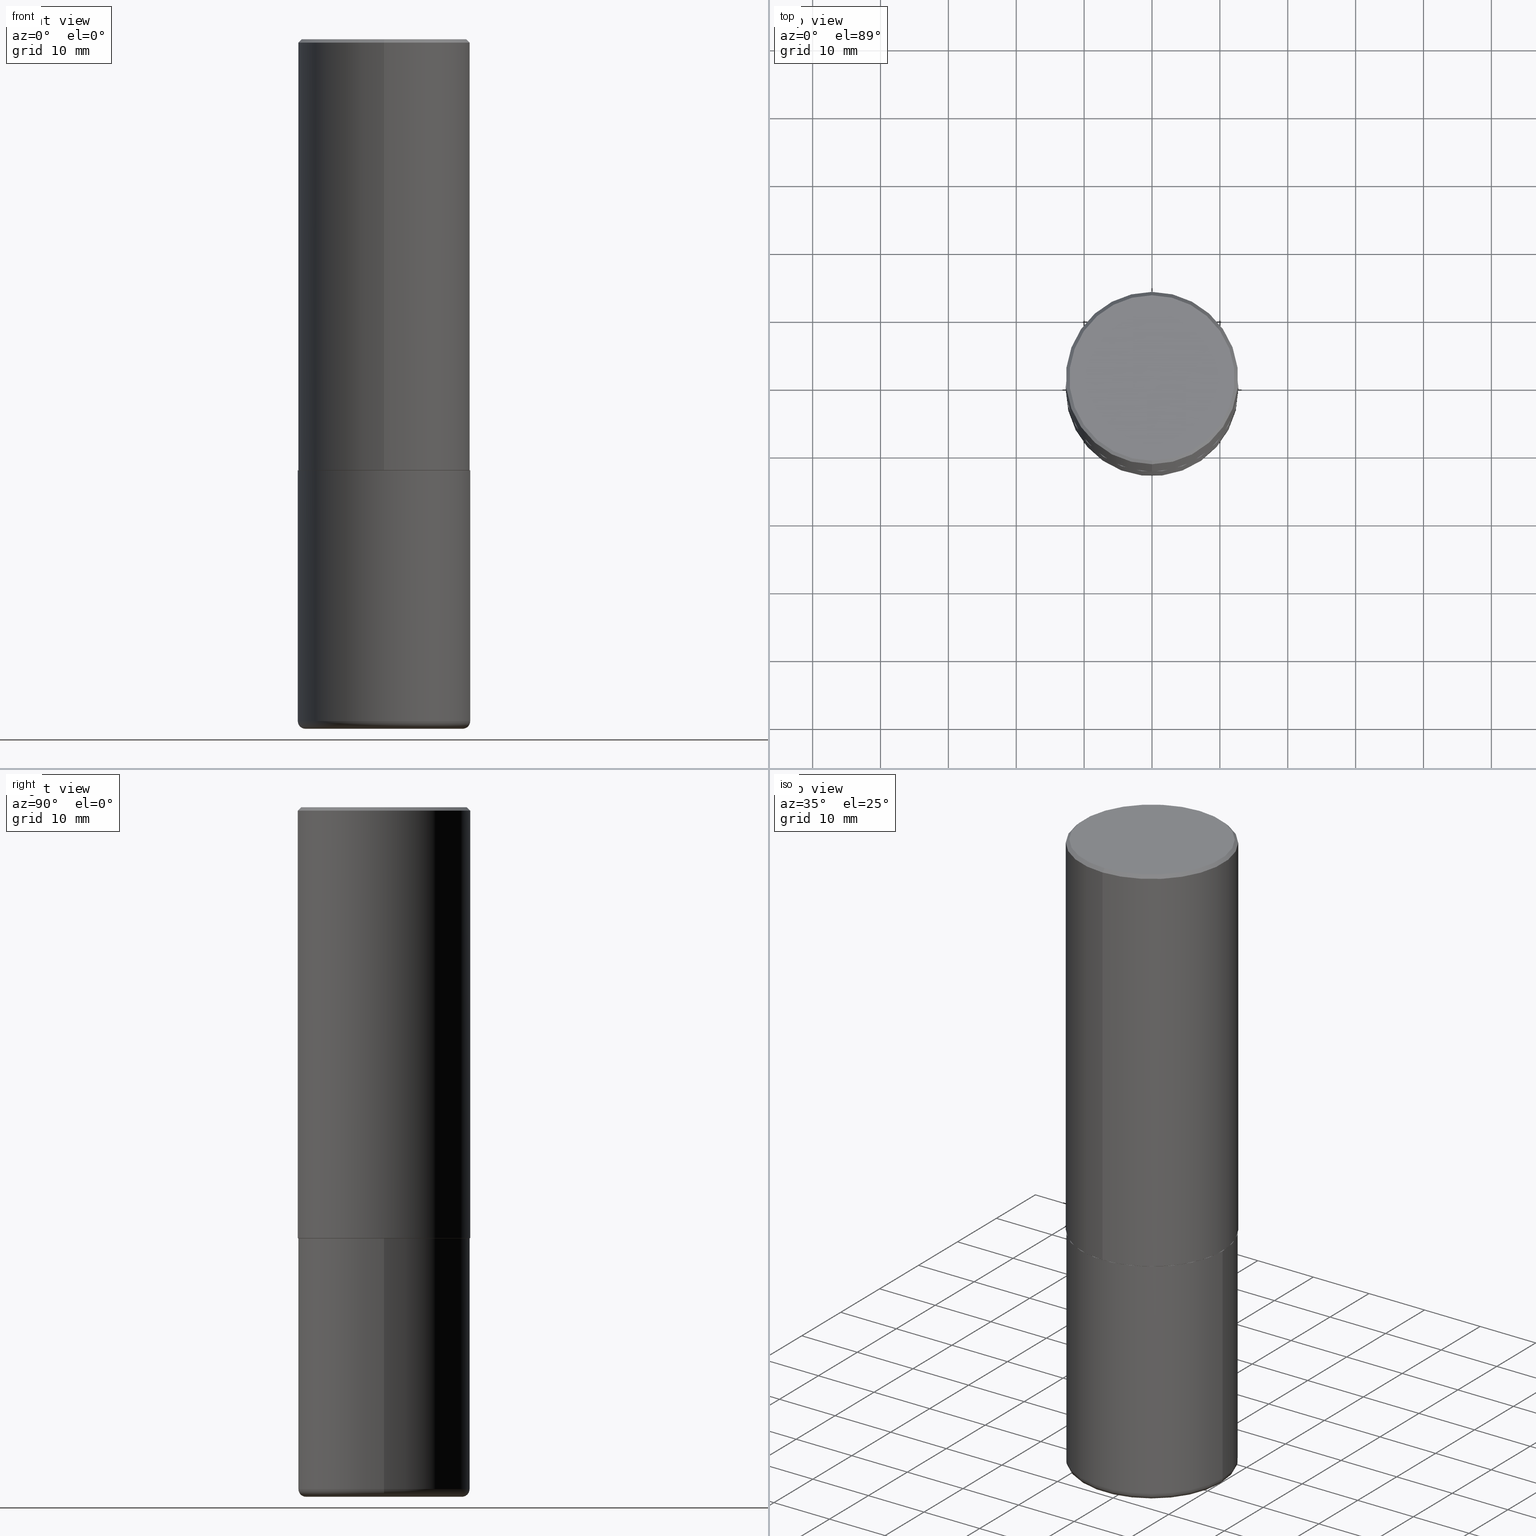
[diagram: canonical four-view strip — front | top / right | iso, engineering-drawing reading convention]
A machine part, canonical four-view strip (front | top / right | iso — engineering-drawing reading convention). The complete STEP part file that produces these views, byte-faithful:
ISO-10303-21;
HEADER;
FILE_DESCRIPTION (( 'STEP AP203' ),
    '1' );
FILE_NAME ('38307.STEP',
    '2024-03-02T21:56:03',
    ( '' ),
    ( '' ),
    'SwSTEP 2.0',
    'SolidWorks 2023',
    '' );
FILE_SCHEMA (( 'CONFIG_CONTROL_DESIGN' ));
ENDSEC;

DATA;
#1 = PRODUCT_RELATED_PRODUCT_CATEGORY ( 'detail', '', ( #263 ) ) ;
#2 = PERSON_AND_ORGANIZATION_ROLE ( 'creator' ) ;
#3 = AXIS2_PLACEMENT_3D ( 'NONE', #379, #186, #357 ) ;
#4 = EDGE_CURVE ( 'NONE', #269, #139, #52, .T. ) ;
#5 = PERSON_AND_ORGANIZATION ( #261, #8 ) ;
#6 = CARTESIAN_POINT ( 'NONE',  ( 0.000000000000000000, 0.000000000000000000, 0.000000000000000000 ) ) ;
#7 = AXIS2_PLACEMENT_3D ( 'NONE', #351, #356, #61 ) ;
#8 = ORGANIZATION ( 'UNSPECIFIED', 'UNSPECIFIED', '' ) ;
#9 = EDGE_CURVE ( 'NONE', #223, #231, #284, .T. ) ;
#10 = ORIENTED_EDGE ( 'NONE', *, *, #121, .F. ) ;
#11 = ORIENTED_EDGE ( 'NONE', *, *, #39, .F. ) ;
#12 = VERTEX_POINT ( 'NONE', #414 ) ;
#13 = LOCAL_TIME ( 16, 56, 3.000000000000000000, #326 ) ;
#14 = EDGE_CURVE ( 'NONE', #211, #399, #175, .T. ) ;
#15 = DIRECTION ( 'NONE',  ( -6.982962677686265922E-15, -1.000000000000000000, 3.284787166730577015E-15 ) ) ;
#16 = ORIENTED_EDGE ( 'NONE', *, *, #89, .F. ) ;
#17 = AXIS2_PLACEMENT_3D ( 'NONE', #418, #123, #389 ) ;
#18 = ADVANCED_FACE ( 'NONE', ( #242 ), #117, .T. ) ;
#19 = ORIENTED_EDGE ( 'NONE', *, *, #150, .F. ) ;
#20 = DIRECTION ( 'NONE',  ( 1.000000000000000000, -6.982962677686266711E-15, 4.876176775795935793E-29 ) ) ;
#21 = CC_DESIGN_PERSON_AND_ORGANIZATION_ASSIGNMENT ( #259, #323, ( #294 ) ) ;
#22 = CARTESIAN_POINT ( 'NONE',  ( 6.111162829265862436E-29, -8.732296644555945592E-15, -2.499999999999999556 ) ) ;
#23 = AXIS2_PLACEMENT_3D ( 'NONE', #84, #205, #80 ) ;
#24 = CARTESIAN_POINT ( 'NONE',  ( -3.491481338843073796E-15, -0.5000000000000089928, -2.498999999999998778 ) ) ;
#25 = DIRECTION ( 'NONE',  ( -6.982962677686265922E-15, -1.000000000000000000, 3.284787166730577015E-15 ) ) ;
#26 = APPLICATION_PROTOCOL_DEFINITION ( 'international standard', 'config_control_design', 1994, #391 ) ;
#27 = VERTEX_POINT ( 'NONE', #46 ) ;
#28 = CALENDAR_DATE ( 2024, 2, 3 ) ;
#29 = DATE_TIME_ROLE ( 'classification_date' ) ;
#30 = CIRCLE ( 'NONE', #58, 0.5000000000000002220 ) ;
#31 = DIRECTION ( 'NONE',  ( -2.445468806185136597E-29, 3.491481338843145583E-15, 1.000000000000000000 ) ) ;
#32 = CALENDAR_DATE ( 2024, 2, 3 ) ;
#33 = APPROVAL_ROLE ( '' ) ;
#34 = EDGE_CURVE ( 'NONE', #266, #66, #329, .T. ) ;
#35 = CIRCLE ( 'NONE', #3, 0.5000000000000002220 ) ;
#36 = ORIENTED_EDGE ( 'NONE', *, *, #262, .T. ) ;
#37 = CC_DESIGN_DATE_AND_TIME_ASSIGNMENT ( #157, #29, ( #126 ) ) ;
#38 = DIRECTION ( 'NONE',  ( -2.444465131706345255E-29, 3.492918657822378868E-15, 1.000000000000000000 ) ) ;
#39 = EDGE_CURVE ( 'NONE', #272, #231, #398, .T. ) ;
#40 = CARTESIAN_POINT ( 'NONE',  ( 0.000000000000000000, 0.000000000000000000, 0.000000000000000000 ) ) ;
#41 = DIRECTION ( 'NONE',  ( -6.982962677686266711E-15, -1.000000000000000000, 3.491481338843145583E-15 ) ) ;
#42 = AXIS2_PLACEMENT_3D ( 'NONE', #312, #49, #278 ) ;
#43 = CYLINDRICAL_SURFACE ( 'NONE', #415, 0.5000000000000000000 ) ;
#44 = ORIENTED_EDGE ( 'NONE', *, *, #124, .T. ) ;
#45 = DIRECTION ( 'NONE',  ( -2.444465131706345255E-29, 3.492918657822378473E-15, 1.000000000000000000 ) ) ;
#46 = CARTESIAN_POINT ( 'NONE',  ( -3.361644018908049661E-15, -0.4799999999999998157, 1.801077731077684661E-15 ) ) ;
#47 = FACE_OUTER_BOUND ( 'NONE', #179, .T. ) ;
#48 = ORIENTED_EDGE ( 'NONE', *, *, #81, .T. ) ;
#49 = DIRECTION ( 'NONE',  ( 2.444465131706344694E-29, -3.492918657822378868E-15, -1.000000000000000000 ) ) ;
#50 = ADVANCED_FACE ( 'NONE', ( #229 ), #394, .T. ) ;
#51 = ORIENTED_EDGE ( 'NONE', *, *, #4, .T. ) ;
#52 = CIRCLE ( 'NONE', #313, 0.4989999999999999991 ) ;
#53 = LINE ( 'NONE', #187, #386 ) ;
#54 = CIRCLE ( 'NONE', #320, 0.4989999999999999991 ) ;
#55 = ORIENTED_EDGE ( 'NONE', *, *, #348, .T. ) ;
#56 = CARTESIAN_POINT ( 'NONE',  ( 3.549160965121762351E-15, 0.4989999999999912283, -2.500000000000001332 ) ) ;
#57 = FACE_OUTER_BOUND ( 'NONE', #311, .T. ) ;
#58 = AXIS2_PLACEMENT_3D ( 'NONE', #333, #45, #255 ) ;
#59 = FACE_OUTER_BOUND ( 'NONE', #413, .T. ) ;
#60 = APPROVAL ( #125, 'UNSPECIFIED' ) ;
#61 = DIRECTION ( 'NONE',  ( -6.982962677686265922E-15, -1.000000000000000000, 3.492918657822378473E-15 ) ) ;
#62 = ADVANCED_FACE ( 'NONE', ( #198 ), #210, .F. ) ;
#63 = APPROVAL_STATUS ( 'not_yet_approved' ) ;
#64 = CC_DESIGN_SECURITY_CLASSIFICATION ( #126, ( #143 ) ) ;
#65 = DATE_AND_TIME ( #355, #292 ) ;
#66 = VERTEX_POINT ( 'NONE', #283 ) ;
#67 = DIRECTION ( 'NONE',  ( 1.000000000000000000, -6.982962677686246200E-15, 0.000000000000000000 ) ) ;
#68 = DATE_AND_TIME ( #257, #327 ) ;
#69 = SHAPE_DEFINITION_REPRESENTATION ( #324, #397 ) ;
#70 = CARTESIAN_POINT ( 'NONE',  ( -0.5000000000000000000, -7.716042342315751891E-15, -2.500000000000000000 ) ) ;
#71 = ADVANCED_FACE ( 'NONE', ( #337 ), #237, .T. ) ;
#72 = DIRECTION ( 'NONE',  ( -2.445468806185136597E-29, 3.491481338843145583E-15, 1.000000000000000000 ) ) ;
#73 = APPROVAL ( #63, 'UNSPECIFIED' ) ;
#74 = VECTOR ( 'NONE', #408, 39.37007874015748143 ) ;
#75 = EDGE_LOOP ( 'NONE', ( #376, #367 ) ) ;
#76 = FACE_OUTER_BOUND ( 'NONE', #241, .T. ) ;
#77 = DIRECTION ( 'NONE',  ( -6.982962677686265922E-15, -1.000000000000000000, 3.492918657822378473E-15 ) ) ;
#78 = PLANE ( 'NONE',  #308 ) ;
#79 = ORIENTED_EDGE ( 'NONE', *, *, #393, .T. ) ;
#80 = DIRECTION ( 'NONE',  ( 6.982962677686265922E-15, 1.000000000000000000, -3.491643216902136408E-15 ) ) ;
#81 = EDGE_CURVE ( 'NONE', #139, #339, #92, .T. ) ;
#82 = FACE_OUTER_BOUND ( 'NONE', #208, .T. ) ;
#83 = ORIENTED_EDGE ( 'NONE', *, *, #184, .T. ) ;
#84 = CARTESIAN_POINT ( 'NONE',  ( 4.888930263412717169E-31, -6.985837315644793974E-17, -0.02000000000000010797 ) ) ;
#85 = ORIENTED_EDGE ( 'NONE', *, *, #334, .T. ) ;
#86 = AXIS2_PLACEMENT_3D ( 'NONE', #310, #281, #20 ) ;
#87 = DIRECTION ( 'NONE',  ( -2.445468806185136597E-29, 3.491481338843145583E-15, 1.000000000000000000 ) ) ;
#88 = DIRECTION ( 'NONE',  ( 5.024295867790635654E-15, 0.7071067811869121700, 0.7071067811861828645 ) ) ;
#89 = EDGE_CURVE ( 'NONE', #211, #266, #246, .T. ) ;
#90 = VERTEX_POINT ( 'NONE', #344 ) ;
#91 =( LENGTH_UNIT ( ) NAMED_UNIT ( * ) SI_UNIT ( $, .METRE. ) );
#92 = LINE ( 'NONE', #346, #385 ) ;
#93 = CC_DESIGN_PERSON_AND_ORGANIZATION_ASSIGNMENT ( #290, #384, ( #143 ) ) ;
#94 = DIRECTION ( 'NONE',  ( 4.937700262164543309E-15, 0.7071067811865444641, -0.7071067811865505703 ) ) ;
#95 = PERSON_AND_ORGANIZATION ( #261, #8 ) ;
#96 = CIRCLE ( 'NONE', #215, 0.04499999999999985956 ) ;
#97 = DIRECTION ( 'NONE',  ( -2.445468806185136597E-29, 3.491481338843145583E-15, 1.000000000000000000 ) ) ;
#98 = DIRECTION ( 'NONE',  ( -6.982962677686265922E-15, -1.000000000000000000, 3.491643216902136408E-15 ) ) ;
#99 = ADVANCED_FACE ( 'NONE', ( #59 ), #341, .T. ) ;
#100 = DIRECTION ( 'NONE',  ( -6.982962677686265922E-15, -1.000000000000000000, 3.492918657822378473E-15 ) ) ;
#101 = COORDINATED_UNIVERSAL_TIME_OFFSET ( 5, 0, .BEHIND. ) ;
#102 = CONICAL_SURFACE ( 'NONE', #225, 0.4989999999999999991, 0.7853981633979605359 ) ;
#103 = CARTESIAN_POINT ( 'NONE',  ( -3.491481338843133750E-15, -0.5000000000000001110, 1.746459328911189631E-15 ) ) ;
#104 = CC_DESIGN_APPROVAL ( #73, ( #143 ) ) ;
#105 = UNCERTAINTY_MEASURE_WITH_UNIT (LENGTH_MEASURE( 1.000000000000000082E-05 ), #201, 'distance_accuracy_value', 'NONE');
#106 = ORIENTED_EDGE ( 'NONE', *, *, #235, .F. ) ;
#107 = CARTESIAN_POINT ( 'NONE',  ( 0.4550000000000000155, -1.698605671347189079E-14, -3.954999999999999627 ) ) ;
#108 = CALENDAR_DATE ( 2024, 2, 3 ) ;
#109 = EDGE_CURVE ( 'NONE', #269, #272, #148, .T. ) ;
#110 = CARTESIAN_POINT ( 'NONE',  ( 9.671829128462214433E-29, -1.380880869512464070E-14, -3.954999999999999627 ) ) ;
#111 = DIRECTION ( 'NONE',  ( 6.982962677686265922E-15, 1.000000000000000000, -3.491643216902136408E-15 ) ) ;
#112 = ADVANCED_FACE ( 'NONE', ( #217 ), #115, .T. ) ;
#113 = DIMENSIONAL_EXPONENTS ( 1.000000000000000000, 0.000000000000000000, 0.000000000000000000, 0.000000000000000000, 0.000000000000000000, 0.000000000000000000, 0.000000000000000000 ) ;
#114 = APPROVAL_PERSON_ORGANIZATION ( #5, #60, #129 ) ;
#115 = CYLINDRICAL_SURFACE ( 'NONE', #306, 0.5000000000000001110 ) ;
#116 =( NAMED_UNIT ( * ) PLANE_ANGLE_UNIT ( ) SI_UNIT ( $, .RADIAN. ) );
#117 = CYLINDRICAL_SURFACE ( 'NONE', #214, 0.5000000000000001110 ) ;
#118 = EDGE_LOOP ( 'NONE', ( #10, #55, #403, #245 ) ) ;
#119 = ORIENTED_EDGE ( 'NONE', *, *, #348, .F. ) ;
#120 = AXIS2_PLACEMENT_3D ( 'NONE', #183, #31, #388 ) ;
#121 = EDGE_CURVE ( 'NONE', #27, #12, #358, .T. ) ;
#122 = DIRECTION ( 'NONE',  ( -2.444465131706345255E-29, 3.492918657822378473E-15, 1.000000000000000000 ) ) ;
#123 = DIRECTION ( 'NONE',  ( 7.105427357601001859E-15, 1.000000000000000000, -3.491481338843145583E-15 ) ) ;
#124 = EDGE_CURVE ( 'NONE', #236, #90, #177, .T. ) ;
#125 = APPROVAL_STATUS ( 'not_yet_approved' ) ;
#126 = SECURITY_CLASSIFICATION ( '', '', #350 ) ;
#127 = CARTESIAN_POINT ( 'NONE',  ( 0.5000000000000000000, -1.730029003396777405E-14, -3.954999999999999627 ) ) ;
#128 = ORIENTED_EDGE ( 'NONE', *, *, #109, .F. ) ;
#129 = APPROVAL_ROLE ( '' ) ;
#130 = VECTOR ( 'NONE', #199, 39.37007874015748143 ) ;
#131 =( GEOMETRIC_REPRESENTATION_CONTEXT ( 3 ) GLOBAL_UNCERTAINTY_ASSIGNED_CONTEXT ( ( #105 ) ) GLOBAL_UNIT_ASSIGNED_CONTEXT ( ( #201, #116, #268 ) ) REPRESENTATION_CONTEXT ( 'NONE', 'WORKASPACE' ) );
#132 = CIRCLE ( 'NONE', #352, 0.5000000000000000000 ) ;
#133 = EDGE_CURVE ( 'NONE', #90, #211, #395, .T. ) ;
#134 = ORIENTED_EDGE ( 'NONE', *, *, #14, .T. ) ;
#135 = CIRCLE ( 'NONE', #285, 0.4550000000000000155 ) ;
#136 = APPROVAL_ROLE ( '' ) ;
#137 = CARTESIAN_POINT ( 'NONE',  ( 1.313596622797037674E-28, -9.162676135743107690E-15, -4.000000000000000000 ) ) ;
#138 = ORIENTED_EDGE ( 'NONE', *, *, #109, .T. ) ;
#139 = VERTEX_POINT ( 'NONE', #56 ) ;
#140 = DIRECTION ( 'NONE',  ( 1.000000000000000000, -6.982962677686265133E-15, 0.000000000000000000 ) ) ;
#141 = LENGTH_MEASURE_WITH_UNIT ( LENGTH_MEASURE( 0.02539999999999999897 ), #91 );
#142 = AXIS2_PLACEMENT_3D ( 'NONE', #220, #122, #249 ) ;
#143 = PRODUCT_DEFINITION_FORMATION_WITH_SPECIFIED_SOURCE ( 'ANY', '', #263, .NOT_KNOWN. ) ;
#144 = ORIENTED_EDGE ( 'NONE', *, *, #184, .F. ) ;
#145 = CARTESIAN_POINT ( 'NONE',  ( 4.206032757375876713E-29, -1.146055134077212698E-14, -2.500000000000000000 ) ) ;
#146 = CARTESIAN_POINT ( 'NONE',  ( 3.552713678800533273E-15, 0.4999999999999916178, -2.499000000000001886 ) ) ;
#147 = ORIENTED_EDGE ( 'NONE', *, *, #275, .T. ) ;
#148 = LINE ( 'NONE', #185, #74 ) ;
#149 = DIRECTION ( 'NONE',  ( -2.444465131706345255E-29, 3.492918657822378473E-15, 1.000000000000000000 ) ) ;
#150 = EDGE_CURVE ( 'NONE', #339, #223, #248, .T. ) ;
#151 = CLOSED_SHELL ( 'NONE', ( #71, #18, #382, #256, #112, #193, #291, #155 ) ) ;
#152 = AXIS2_PLACEMENT_3D ( 'NONE', #289, #254, #98 ) ;
#153 = CARTESIAN_POINT ( 'NONE',  ( 9.671829128462214433E-29, -1.380880869512464070E-14, -3.954999999999999627 ) ) ;
#154 = CARTESIAN_POINT ( 'NONE',  ( 9.781875224740545266E-29, -1.396592535537258075E-14, -3.999999999999999556 ) ) ;
#155 = ADVANCED_FACE ( 'NONE', ( #82 ), #209, .F. ) ;
#156 = ORIENTED_EDGE ( 'NONE', *, *, #163, .F. ) ;
#157 = DATE_AND_TIME ( #28, #342 ) ;
#158 = DIRECTION ( 'NONE',  ( -6.982962677686265922E-15, -1.000000000000000000, 3.492918657822378473E-15 ) ) ;
#159 = CARTESIAN_POINT ( 'NONE',  ( 6.111162829265862436E-29, -8.732296644555945592E-15, -2.499999999999999556 ) ) ;
#160 = PERSON_AND_ORGANIZATION ( #261, #8 ) ;
#161 = APPROVAL_PERSON_ORGANIZATION ( #160, #218, #136 ) ;
#162 = EDGE_LOOP ( 'NONE', ( #19, #380, #216, #405 ) ) ;
#163 = EDGE_CURVE ( 'NONE', #90, #236, #135, .T. ) ;
#164 = MANIFOLD_SOLID_BREP ( 'Body-Move/Copy2[1]', #377 ) ;
#165 = COORDINATED_UNIVERSAL_TIME_OFFSET ( 5, 0, .BEHIND. ) ;
#166 = EDGE_LOOP ( 'NONE', ( #147, #85 ) ) ;
#167 = ORIENTED_EDGE ( 'NONE', *, *, #243, .T. ) ;
#168 = DIRECTION ( 'NONE',  ( -2.445468806185136877E-29, 3.491481338843145188E-15, 1.000000000000000000 ) ) ;
#169 = DIRECTION ( 'NONE',  ( 1.000000000000000000, -6.982962677686269077E-15, 0.000000000000000000 ) ) ;
#170 = CIRCLE ( 'NONE', #297, 0.5000000000000000000 ) ;
#171 = DIRECTION ( 'NONE',  ( 2.444465131706345255E-29, -3.492918657822378473E-15, -1.000000000000000000 ) ) ;
#172 = DIRECTION ( 'NONE',  ( -6.982962677686265922E-15, -1.000000000000000000, 3.491643216902136408E-15 ) ) ;
#173 = EDGE_CURVE ( 'NONE', #12, #223, #53, .T. ) ;
#174 = CARTESIAN_POINT ( 'NONE',  ( 6.113672015462842613E-29, -8.728703347107864943E-15, -2.500000000000000000 ) ) ;
#175 = LINE ( 'NONE', #365, #130 ) ;
#176 = FACE_OUTER_BOUND ( 'NONE', #75, .T. ) ;
#177 = CIRCLE ( 'NONE', #314, 0.4550000000000000155 ) ;
#178 = AXIS2_PLACEMENT_3D ( 'NONE', #293, #383, #100 ) ;
#179 = EDGE_LOOP ( 'NONE', ( #371, #253, #264, #305 ) ) ;
#180 = ADVANCED_FACE ( 'NONE', ( #57 ), #360, .T. ) ;
#181 = ORIENTED_EDGE ( 'NONE', *, *, #212, .F. ) ;
#182 = DIRECTION ( 'NONE',  ( -2.444465131706345255E-29, 3.492918657822378868E-15, 1.000000000000000000 ) ) ;
#183 = CARTESIAN_POINT ( 'NONE',  ( 9.671829128462214433E-29, -1.380880869512464070E-14, -3.954999999999999627 ) ) ;
#184 = EDGE_CURVE ( 'NONE', #266, #211, #260, .T. ) ;
#185 = CARTESIAN_POINT ( 'NONE',  ( -3.484498376165385415E-15, -0.4990000000000087144, -2.499999999999997780 ) ) ;
#186 = DIRECTION ( 'NONE',  ( -2.444465131706345255E-29, 3.492918657822378473E-15, 1.000000000000000000 ) ) ;
#187 = CARTESIAN_POINT ( 'NONE',  ( 3.491481338843133355E-15, 0.4999999999999999445, -0.02000000000000185310 ) ) ;
#188 = FACE_OUTER_BOUND ( 'NONE', #359, .T. ) ;
#189 = APPROVAL_DATE_TIME ( #286, #73 ) ;
#190 = COORDINATED_UNIVERSAL_TIME_OFFSET ( 5, 0, .BEHIND. ) ;
#191 = VECTOR ( 'NONE', #38, 39.37007874015748143 ) ;
#192 = VECTOR ( 'NONE', #232, 39.37007874015748143 ) ;
#193 = ADVANCED_FACE ( 'NONE', ( #188 ), #102, .T. ) ;
#194 = PERSON_AND_ORGANIZATION ( #261, #8 ) ;
#195 = DATE_TIME_ROLE ( 'creation_date' ) ;
#196 = APPROVAL_PERSON_ORGANIZATION ( #194, #73, #33 ) ;
#197 = ORIENTED_EDGE ( 'NONE', *, *, #243, .F. ) ;
#198 = FACE_OUTER_BOUND ( 'NONE', #166, .T. ) ;
#199 = DIRECTION ( 'NONE',  ( -2.445468806185136877E-29, 3.491481338843145188E-15, 1.000000000000000000 ) ) ;
#200 = DIRECTION ( 'NONE',  ( 1.000000000000000000, -6.982962677686269077E-15, 4.883557194083114022E-29 ) ) ;
#201 =( CONVERSION_BASED_UNIT ( 'INCH', #141 ) LENGTH_UNIT ( ) NAMED_UNIT ( #113 ) );
#202 = AXIS2_PLACEMENT_3D ( 'NONE', #110, #72, #200 ) ;
#203 = CIRCLE ( 'NONE', #178, 0.4799999999999998157 ) ;
#204 = ORIENTED_EDGE ( 'NONE', *, *, #9, .T. ) ;
#205 = DIRECTION ( 'NONE',  ( 2.444465131706345255E-29, -3.492918657822378473E-15, -1.000000000000000000 ) ) ;
#206 = CARTESIAN_POINT ( 'NONE',  ( 3.552713678800501718E-15, 0.5000000000000001110, -1.746459328911189631E-15 ) ) ;
#207 = DIRECTION ( 'NONE',  ( 1.000000000000000000, -6.982962677686269077E-15, 0.000000000000000000 ) ) ;
#208 = EDGE_LOOP ( 'NONE', ( #332, #363 ) ) ;
#209 = PLANE ( 'NONE',  #42 ) ;
#210 = PLANE ( 'NONE',  #325 ) ;
#211 = VERTEX_POINT ( 'NONE', #417 ) ;
#212 = EDGE_CURVE ( 'NONE', #12, #27, #203, .T. ) ;
#213 = CARTESIAN_POINT ( 'NONE',  ( 9.671829128462214433E-29, -1.380880869512464070E-14, -3.954999999999999627 ) ) ;
#214 = AXIS2_PLACEMENT_3D ( 'NONE', #40, #219, #77 ) ;
#215 = AXIS2_PLACEMENT_3D ( 'NONE', #107, #41, #67 ) ;
#216 = ORIENTED_EDGE ( 'NONE', *, *, #39, .T. ) ;
#217 = FACE_OUTER_BOUND ( 'NONE', #162, .T. ) ;
#218 = APPROVAL ( #233, 'UNSPECIFIED' ) ;
#219 = DIRECTION ( 'NONE',  ( -2.444465131706345255E-29, 3.492918657822378473E-15, 1.000000000000000000 ) ) ;
#220 = CARTESIAN_POINT ( 'NONE',  ( 6.111162829265862436E-29, -8.732296644555945592E-15, -2.499999999999999556 ) ) ;
#221 = CONICAL_SURFACE ( 'NONE', #23, 0.5000000000000000000, 0.7853981633974473908 ) ;
#222 = DIRECTION ( 'NONE',  ( 1.000000000000000000, -6.982962677686265133E-15, 0.000000000000000000 ) ) ;
#223 = VERTEX_POINT ( 'NONE', #250 ) ;
#224 = PERSON_AND_ORGANIZATION ( #261, #8 ) ;
#225 = AXIS2_PLACEMENT_3D ( 'NONE', #159, #381, #25 ) ;
#226 = CARTESIAN_POINT ( 'NONE',  ( 6.113672015462842613E-29, -8.728703347107864943E-15, -2.500000000000000000 ) ) ;
#227 = EDGE_LOOP ( 'NONE', ( #36, #228, #106, #11 ) ) ;
#228 = ORIENTED_EDGE ( 'NONE', *, *, #150, .T. ) ;
#229 = FACE_OUTER_BOUND ( 'NONE', #349, .T. ) ;
#230 = CONICAL_SURFACE ( 'NONE', #347, 0.5000000000000000000, 0.7853981633974473908 ) ;
#231 = VERTEX_POINT ( 'NONE', #316 ) ;
#232 = DIRECTION ( 'NONE',  ( -4.851104656540959542E-15, -0.7071067811865493491, -0.7071067811865456854 ) ) ;
#233 = APPROVAL_STATUS ( 'not_yet_approved' ) ;
#234 = PLANE ( 'NONE',  #378 ) ;
#235 = EDGE_CURVE ( 'NONE', #231, #223, #239, .T. ) ;
#236 = VERTEX_POINT ( 'NONE', #392 ) ;
#237 = CONICAL_SURFACE ( 'NONE', #142, 0.4989999999999999991, 0.7853981633979605359 ) ;
#238 = DIRECTION ( 'NONE',  ( -2.444465131706345255E-29, 3.492918657822378473E-15, 1.000000000000000000 ) ) ;
#239 = CIRCLE ( 'NONE', #152, 0.5000000000000000000 ) ;
#240 = DESIGN_CONTEXT ( 'detailed design', #277, 'design' ) ;
#241 = EDGE_LOOP ( 'NONE', ( #119, #181, #288, #204 ) ) ;
#242 = FACE_OUTER_BOUND ( 'NONE', #227, .T. ) ;
#243 = EDGE_CURVE ( 'NONE', #236, #266, #96, .T. ) ;
#244 = DIRECTION ( 'NONE',  ( 1.000000000000000000, -6.982962677686266711E-15, 4.876176775795935793E-29 ) ) ;
#245 = ORIENTED_EDGE ( 'NONE', *, *, #173, .F. ) ;
#246 = CIRCLE ( 'NONE', #251, 0.5000000000000001110 ) ;
#247 = CC_DESIGN_APPROVAL ( #218, ( #126 ) ) ;
#248 = LINE ( 'NONE', #206, #401 ) ;
#249 = DIRECTION ( 'NONE',  ( -6.982962677686265922E-15, -1.000000000000000000, 3.284787166730577015E-15 ) ) ;
#250 = CARTESIAN_POINT ( 'NONE',  ( 3.491481338843133355E-15, 0.4999999999999999445, -0.02000000000000185310 ) ) ;
#251 = AXIS2_PLACEMENT_3D ( 'NONE', #213, #87, #140 ) ;
#252 = LOCAL_TIME ( 16, 56, 3.000000000000000000, #101 ) ;
#253 = ORIENTED_EDGE ( 'NONE', *, *, #89, .T. ) ;
#254 = DIRECTION ( 'NONE',  ( -2.444465131706345255E-29, 3.492918657822378473E-15, 1.000000000000000000 ) ) ;
#255 = DIRECTION ( 'NONE',  ( -6.982962677686266711E-15, -1.000000000000000000, 3.278217592397114284E-15 ) ) ;
#256 = ADVANCED_FACE ( 'NONE', ( #76 ), #221, .T. ) ;
#257 = CALENDAR_DATE ( 2024, 2, 3 ) ;
#258 = DIRECTION ( 'NONE',  ( -2.445468806185136597E-29, 3.491481338843145583E-15, 1.000000000000000000 ) ) ;
#259 = PERSON_AND_ORGANIZATION ( #261, #8 ) ;
#260 = CIRCLE ( 'NONE', #407, 0.5000000000000001110 ) ;
#261 = PERSON ( 'UNSPECIFIED', 'UNSPECIFIED', 'UNSPECIFIED', ('UNSPECIFIED'), ('UNSPECIFIED'), ('UNSPECIFIED') ) ;
#262 = EDGE_CURVE ( 'NONE', #272, #339, #30, .T. ) ;
#263 = PRODUCT ( '38307', '38307', '', ( #265 ) ) ;
#264 = ORIENTED_EDGE ( 'NONE', *, *, #34, .T. ) ;
#265 = MECHANICAL_CONTEXT ( 'NONE', #391, 'mechanical' ) ;
#266 = VERTEX_POINT ( 'NONE', #127 ) ;
#267 = EDGE_CURVE ( 'NONE', #339, #272, #35, .T. ) ;
#268 =( NAMED_UNIT ( * ) SI_UNIT ( $, .STERADIAN. ) SOLID_ANGLE_UNIT ( ) );
#269 = VERTEX_POINT ( 'NONE', #362 ) ;
#270 = CC_DESIGN_PERSON_AND_ORGANIZATION_ASSIGNMENT ( #95, #318, ( #126 ) ) ;
#271 = CARTESIAN_POINT ( 'NONE',  ( 0.000000000000000000, 0.000000000000000000, 0.000000000000000000 ) ) ;
#272 = VERTEX_POINT ( 'NONE', #24 ) ;
#273 = CARTESIAN_POINT ( 'NONE',  ( 6.111162829265862436E-29, -8.732296644555945592E-15, -2.499999999999999556 ) ) ;
#274 = CC_DESIGN_APPROVAL ( #60, ( #294 ) ) ;
#275 = EDGE_CURVE ( 'NONE', #66, #399, #170, .T. ) ;
#276 = CARTESIAN_POINT ( 'NONE',  ( 4.888930263412717169E-31, -6.985837315644793974E-17, -0.02000000000000010797 ) ) ;
#277 = APPLICATION_CONTEXT ( 'configuration controlled 3d designs of mechanical parts and assemblies' ) ;
#278 = DIRECTION ( 'NONE',  ( 6.982962677686265922E-15, 1.000000000000000000, -3.492918657822378868E-15 ) ) ;
#279 = CARTESIAN_POINT ( 'NONE',  ( -3.430248998885764992E-15, -0.5000000000000001110, -0.01999999999999835937 ) ) ;
#280 = ORIENTED_EDGE ( 'NONE', *, *, #275, .F. ) ;
#281 = DIRECTION ( 'NONE',  ( -2.445468806185136597E-29, 3.491481338843145583E-15, 1.000000000000000000 ) ) ;
#282 = DIRECTION ( 'NONE',  ( -6.982962677686265922E-15, -1.000000000000000000, 3.284787166730577015E-15 ) ) ;
#283 = CARTESIAN_POINT ( 'NONE',  ( 0.5000000000000000000, -1.222018468595099830E-14, -2.500000000000000000 ) ) ;
#284 = CIRCLE ( 'NONE', #406, 0.5000000000000000000 ) ;
#285 = AXIS2_PLACEMENT_3D ( 'NONE', #411, #373, #340 ) ;
#286 = DATE_AND_TIME ( #32, #252 ) ;
#287 = DIRECTION ( 'NONE',  ( 1.000000000000000000, -6.982962677686265922E-15, 0.000000000000000000 ) ) ;
#288 = ORIENTED_EDGE ( 'NONE', *, *, #173, .T. ) ;
#289 = CARTESIAN_POINT ( 'NONE',  ( 4.888930263412717169E-31, -6.985837315644793974E-17, -0.02000000000000010797 ) ) ;
#290 = PERSON_AND_ORGANIZATION ( #261, #8 ) ;
#291 = ADVANCED_FACE ( 'NONE', ( #176 ), #234, .F. ) ;
#292 = LOCAL_TIME ( 16, 56, 3.000000000000000000, #190 ) ;
#293 = CARTESIAN_POINT ( 'NONE',  ( -3.042791369841808055E-45, 4.347872509910743958E-31, 1.244767753229437217E-16 ) ) ;
#294 = PRODUCT_DEFINITION ( 'UNKNOWN', '', #143, #240 ) ;
#295 = EDGE_LOOP ( 'NONE', ( #303, #156 ) ) ;
#296 = DIRECTION ( 'NONE',  ( -2.444465131706345255E-29, 3.492918657822378473E-15, 1.000000000000000000 ) ) ;
#297 = AXIS2_PLACEMENT_3D ( 'NONE', #226, #396, #169 ) ;
#298 = ORIENTED_EDGE ( 'NONE', *, *, #133, .F. ) ;
#299 = APPROVAL_DATE_TIME ( #328, #218 ) ;
#300 = CARTESIAN_POINT ( 'NONE',  ( 4.888930263412717169E-31, -6.985837315644793974E-17, -0.02000000000000010797 ) ) ;
#301 = MANIFOLD_SOLID_BREP ( 'Body-Move/Copy2[2]', #151 ) ;
#302 = DIRECTION ( 'NONE',  ( -2.445468806185136597E-29, 3.491481338843145583E-15, 1.000000000000000000 ) ) ;
#303 = ORIENTED_EDGE ( 'NONE', *, *, #124, .F. ) ;
#304 = CARTESIAN_POINT ( 'NONE',  ( 0.5000000000000000000, -3.491481338843133355E-15, 2.438088387897967896E-29 ) ) ;
#305 = ORIENTED_EDGE ( 'NONE', *, *, #334, .F. ) ;
#306 = AXIS2_PLACEMENT_3D ( 'NONE', #6, #296, #158 ) ;
#307 = DIRECTION ( 'NONE',  ( -2.445468806185136597E-29, 3.491481338843145583E-15, 1.000000000000000000 ) ) ;
#308 = AXIS2_PLACEMENT_3D ( 'NONE', #137, #335, #404 ) ;
#309 = ORIENTED_EDGE ( 'NONE', *, *, #34, .F. ) ;
#310 = CARTESIAN_POINT ( 'NONE',  ( 0.000000000000000000, 0.000000000000000000, 0.000000000000000000 ) ) ;
#311 = EDGE_LOOP ( 'NONE', ( #44, #343, #144, #197 ) ) ;
#312 = CARTESIAN_POINT ( 'NONE',  ( 3.351822085289406364E-15, 0.4799999999999998157, -1.614362568093269153E-15 ) ) ;
#313 = AXIS2_PLACEMENT_3D ( 'NONE', #22, #149, #282 ) ;
#314 = AXIS2_PLACEMENT_3D ( 'NONE', #154, #97, #287 ) ;
#315 = DIRECTION ( 'NONE',  ( 1.000000000000000000, 0.000000000000000000, 0.000000000000000000 ) ) ;
#316 = CARTESIAN_POINT ( 'NONE',  ( -3.430248998885764992E-15, -0.5000000000000001110, -0.01999999999999835937 ) ) ;
#317 = COORDINATED_UNIVERSAL_TIME_OFFSET ( 5, 0, .BEHIND. ) ;
#318 = PERSON_AND_ORGANIZATION_ROLE ( 'classification_officer' ) ;
#319 = CC_DESIGN_DATE_AND_TIME_ASSIGNMENT ( #68, #195, ( #294 ) ) ;
#320 = AXIS2_PLACEMENT_3D ( 'NONE', #370, #238, #15 ) ;
#321 = EDGE_LOOP ( 'NONE', ( #51, #48, #336, #128 ) ) ;
#322 = APPROVAL_DATE_TIME ( #65, #60 ) ;
#323 = PERSON_AND_ORGANIZATION_ROLE ( 'creator' ) ;
#324 = PRODUCT_DEFINITION_SHAPE ( 'NONE', 'NONE',  #294 ) ;
#325 = AXIS2_PLACEMENT_3D ( 'NONE', #145, #374, #416 ) ;
#326 = COORDINATED_UNIVERSAL_TIME_OFFSET ( 5, 0, .BEHIND. ) ;
#327 = LOCAL_TIME ( 16, 56, 3.000000000000000000, #165 ) ;
#328 = DATE_AND_TIME ( #108, #13 ) ;
#329 = LINE ( 'NONE', #304, #368 ) ;
#330 = CC_DESIGN_PERSON_AND_ORGANIZATION_ASSIGNMENT ( #402, #353, ( #263 ) ) ;
#331 = DIRECTION ( 'NONE',  ( 0.000000000000000000, 0.000000000000000000, 1.000000000000000000 ) ) ;
#332 = ORIENTED_EDGE ( 'NONE', *, *, #212, .T. ) ;
#333 = CARTESIAN_POINT ( 'NONE',  ( 6.108718364134157248E-29, -8.728803725898125516E-15, -2.499000000000000110 ) ) ;
#334 = EDGE_CURVE ( 'NONE', #399, #66, #132, .T. ) ;
#335 = DIRECTION ( 'NONE',  ( 2.438088387897960049E-29, -3.491481338843145188E-15, -1.000000000000000000 ) ) ;
#336 = ORIENTED_EDGE ( 'NONE', *, *, #262, .F. ) ;
#337 = FACE_OUTER_BOUND ( 'NONE', #321, .T. ) ;
#338 = CARTESIAN_POINT ( 'NONE',  ( 0.000000000000000000, 0.000000000000000000, 0.000000000000000000 ) ) ;
#339 = VERTEX_POINT ( 'NONE', #146 ) ;
#340 = DIRECTION ( 'NONE',  ( 1.000000000000000000, -6.982962677686265922E-15, 0.000000000000000000 ) ) ;
#341 = CYLINDRICAL_SURFACE ( 'NONE', #86, 0.5000000000000000000 ) ;
#342 = LOCAL_TIME ( 16, 56, 3.000000000000000000, #317 ) ;
#343 = ORIENTED_EDGE ( 'NONE', *, *, #133, .T. ) ;
#344 = CARTESIAN_POINT ( 'NONE',  ( -0.4550000000000000155, -1.049452546199413209E-14, -3.999999999999999556 ) ) ;
#345 = LINE ( 'NONE', #279, #192 ) ;
#346 = CARTESIAN_POINT ( 'NONE',  ( 3.545608251442960663E-15, 0.4989999999999912283, -2.500000000000001332 ) ) ;
#347 = AXIS2_PLACEMENT_3D ( 'NONE', #300, #171, #111 ) ;
#348 = EDGE_CURVE ( 'NONE', #27, #231, #345, .T. ) ;
#349 = EDGE_LOOP ( 'NONE', ( #298, #372, #167, #16 ) ) ;
#350 = SECURITY_CLASSIFICATION_LEVEL ( 'unclassified' ) ;
#351 = CARTESIAN_POINT ( 'NONE',  ( -3.042791369841808055E-45, 4.347872509910743958E-31, 1.244767753229437217E-16 ) ) ;
#352 = AXIS2_PLACEMENT_3D ( 'NONE', #174, #307, #207 ) ;
#353 = PERSON_AND_ORGANIZATION_ROLE ( 'design_owner' ) ;
#354 = ADVANCED_FACE ( 'NONE', ( #412 ), #78, .T. ) ;
#355 = CALENDAR_DATE ( 2024, 2, 3 ) ;
#356 = DIRECTION ( 'NONE',  ( -2.444465131706345255E-29, 3.492918657822378473E-15, 1.000000000000000000 ) ) ;
#357 = DIRECTION ( 'NONE',  ( -6.982962677686266711E-15, -1.000000000000000000, 3.278217592397114284E-15 ) ) ;
#358 = CIRCLE ( 'NONE', #7, 0.4799999999999998157 ) ;
#359 = EDGE_LOOP ( 'NONE', ( #400, #79, #138, #387 ) ) ;
#360 = TOROIDAL_SURFACE ( 'NONE', #120, 0.4550000000000000155, 0.04499999999999985956 ) ;
#361 = ADVANCED_FACE ( 'NONE', ( #47 ), #43, .T. ) ;
#362 = CARTESIAN_POINT ( 'NONE',  ( -3.484498376165385415E-15, -0.4990000000000087144, -2.499999999999997780 ) ) ;
#363 = ORIENTED_EDGE ( 'NONE', *, *, #121, .T. ) ;
#364 = CC_DESIGN_PERSON_AND_ORGANIZATION_ASSIGNMENT ( #224, #2, ( #143 ) ) ;
#365 = CARTESIAN_POINT ( 'NONE',  ( -0.5000000000000000000, 3.552713678800500929E-15, -2.459467545127452891E-29 ) ) ;
#366 = DIRECTION ( 'NONE',  ( -2.444465131706344694E-29, 3.492918657822378868E-15, 1.000000000000000000 ) ) ;
#367 = ORIENTED_EDGE ( 'NONE', *, *, #393, .F. ) ;
#368 = VECTOR ( 'NONE', #168, 39.37007874015748143 ) ;
#369 = AXIS2_PLACEMENT_3D ( 'NONE', #338, #331, #315 ) ;
#370 = CARTESIAN_POINT ( 'NONE',  ( 6.111162829265862436E-29, -8.732296644555945592E-15, -2.499999999999999556 ) ) ;
#371 = ORIENTED_EDGE ( 'NONE', *, *, #14, .F. ) ;
#372 = ORIENTED_EDGE ( 'NONE', *, *, #163, .T. ) ;
#373 = DIRECTION ( 'NONE',  ( -2.445468806185136597E-29, 3.491481338843145583E-15, 1.000000000000000000 ) ) ;
#374 = DIRECTION ( 'NONE',  ( 2.438088387897960049E-29, -3.491481338843145188E-15, -1.000000000000000000 ) ) ;
#375 = FACE_OUTER_BOUND ( 'NONE', #118, .T. ) ;
#376 = ORIENTED_EDGE ( 'NONE', *, *, #4, .F. ) ;
#377 = CLOSED_SHELL ( 'NONE', ( #99, #180, #62, #361, #50, #354 ) ) ;
#378 = AXIS2_PLACEMENT_3D ( 'NONE', #273, #366, #409 ) ;
#379 = CARTESIAN_POINT ( 'NONE',  ( 6.108718364134157248E-29, -8.728803725898125516E-15, -2.499000000000000110 ) ) ;
#380 = ORIENTED_EDGE ( 'NONE', *, *, #267, .T. ) ;
#381 = DIRECTION ( 'NONE',  ( -2.444465131706345255E-29, 3.492918657822378473E-15, 1.000000000000000000 ) ) ;
#382 = ADVANCED_FACE ( 'NONE', ( #375 ), #230, .T. ) ;
#383 = DIRECTION ( 'NONE',  ( -2.444465131706345255E-29, 3.492918657822378473E-15, 1.000000000000000000 ) ) ;
#384 = PERSON_AND_ORGANIZATION_ROLE ( 'design_supplier' ) ;
#385 = VECTOR ( 'NONE', #88, 39.37007874015748143 ) ;
#386 = VECTOR ( 'NONE', #94, 39.37007874015748143 ) ;
#387 = ORIENTED_EDGE ( 'NONE', *, *, #267, .F. ) ;
#388 = DIRECTION ( 'NONE',  ( 1.000000000000000000, -6.982962677686269077E-15, 4.883557194083114022E-29 ) ) ;
#389 = DIRECTION ( 'NONE',  ( -1.000000000000000000, 7.105427357601012903E-15, 0.000000000000000000 ) ) ;
#390 = APPLICATION_PROTOCOL_DEFINITION ( 'international standard', 'config_control_design', 1994, #277 ) ;
#391 = APPLICATION_CONTEXT ( 'configuration controlled 3d designs of mechanical parts and assemblies' ) ;
#392 = CARTESIAN_POINT ( 'NONE',  ( 0.4550000000000000155, -1.714317337371983084E-14, -3.999999999999999556 ) ) ;
#393 = EDGE_CURVE ( 'NONE', #139, #269, #54, .T. ) ;
#394 = TOROIDAL_SURFACE ( 'NONE', #202, 0.4550000000000000155, 0.04499999999999985956 ) ;
#395 = CIRCLE ( 'NONE', #17, 0.04499999999999985956 ) ;
#396 = DIRECTION ( 'NONE',  ( -2.445468806185136597E-29, 3.491481338843145583E-15, 1.000000000000000000 ) ) ;
#397 = ADVANCED_BREP_SHAPE_REPRESENTATION ( '38307', ( #164, #301, #369 ), #131 ) ;
#398 = LINE ( 'NONE', #103, #191 ) ;
#399 = VERTEX_POINT ( 'NONE', #70 ) ;
#400 = ORIENTED_EDGE ( 'NONE', *, *, #81, .F. ) ;
#401 = VECTOR ( 'NONE', #182, 39.37007874015748143 ) ;
#402 = PERSON_AND_ORGANIZATION ( #261, #8 ) ;
#403 = ORIENTED_EDGE ( 'NONE', *, *, #235, .T. ) ;
#404 = DIRECTION ( 'NONE',  ( -1.000000000000000000, 6.982962677686265922E-15, -4.876176775795935793E-29 ) ) ;
#405 = ORIENTED_EDGE ( 'NONE', *, *, #9, .F. ) ;
#406 = AXIS2_PLACEMENT_3D ( 'NONE', #276, #410, #172 ) ;
#407 = AXIS2_PLACEMENT_3D ( 'NONE', #153, #258, #222 ) ;
#408 = DIRECTION ( 'NONE',  ( -4.937700262167077130E-15, -0.7071067811869072850, 0.7071067811861877495 ) ) ;
#409 = DIRECTION ( 'NONE',  ( -6.982962677686265922E-15, -1.000000000000000000, 3.492918657822378868E-15 ) ) ;
#410 = DIRECTION ( 'NONE',  ( -2.444465131706345255E-29, 3.492918657822378473E-15, 1.000000000000000000 ) ) ;
#411 = CARTESIAN_POINT ( 'NONE',  ( 9.781875224740545266E-29, -1.396592535537258075E-14, -3.999999999999999556 ) ) ;
#412 = FACE_OUTER_BOUND ( 'NONE', #295, .T. ) ;
#413 = EDGE_LOOP ( 'NONE', ( #83, #134, #280, #309 ) ) ;
#414 = CARTESIAN_POINT ( 'NONE',  ( 3.421651712066270057E-15, 0.4799999999999998157, -1.552124180431797316E-15 ) ) ;
#415 = AXIS2_PLACEMENT_3D ( 'NONE', #271, #302, #244 ) ;
#416 = DIRECTION ( 'NONE',  ( -1.000000000000000000, 6.982962677686265922E-15, -4.876176775795935793E-29 ) ) ;
#417 = CARTESIAN_POINT ( 'NONE',  ( -0.5000000000000000000, -1.025609501632413977E-14, -3.954999999999999627 ) ) ;
#418 = CARTESIAN_POINT ( 'NONE',  ( -0.4550000000000000155, -1.057583924741618435E-14, -3.954999999999999627 ) ) ;
ENDSEC;
END-ISO-10303-21;
